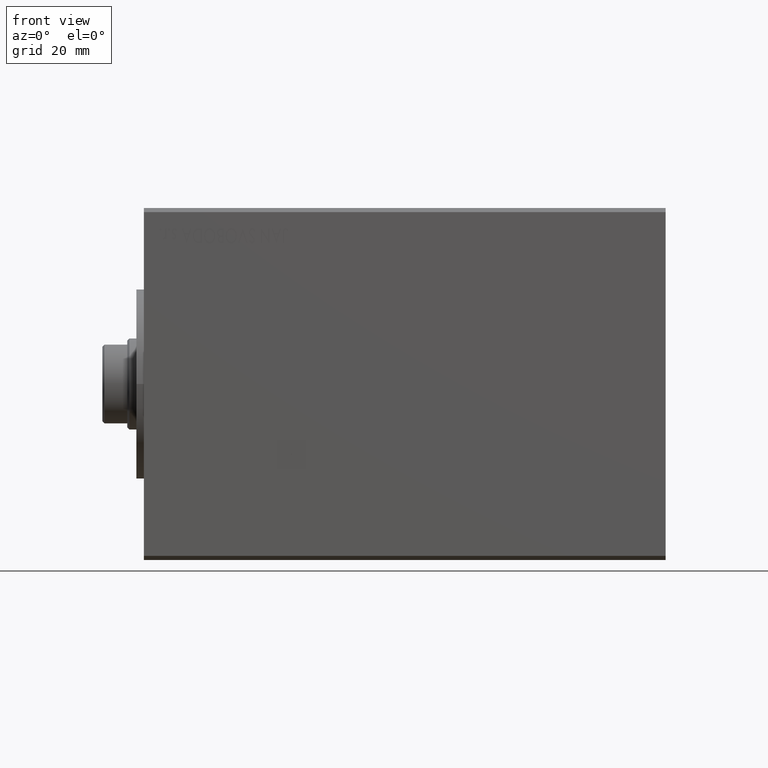
[diagram: clean part render]
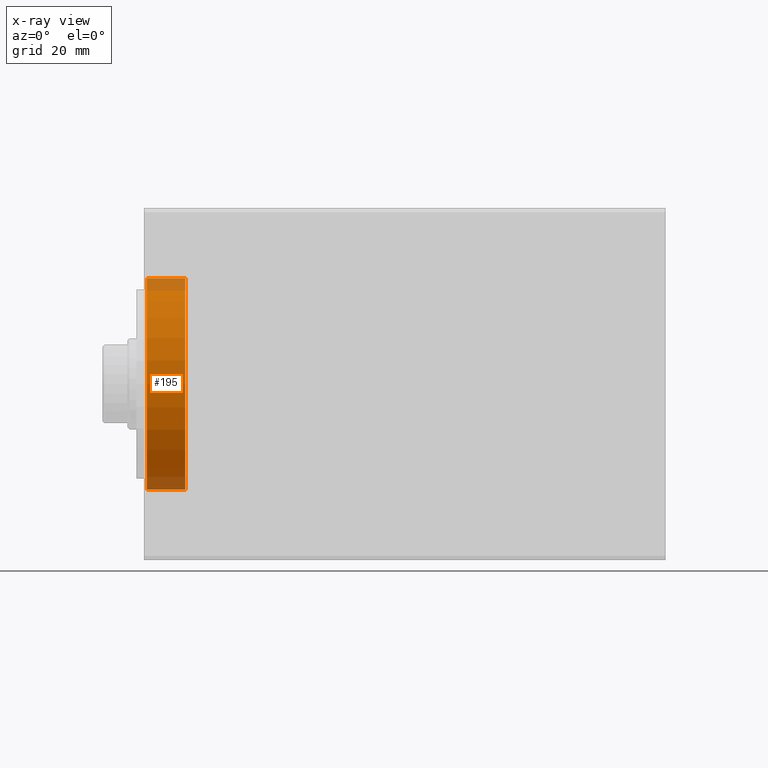
[diagram: x-ray — body ghosted, one internal face saturated and labeled with its STEP entity id]
A machine part, front view, then the same camera in x-ray: the body is ghosted and one INTERNAL B-rep face — a face not visible from any outside direction — is saturated and labeled: STEP entity #195.
In plain terms, the highlighted cylindrical surface (partial cylindrical patch) has radius 25.5 mm, axis along (-1, -0, -0).
Its self-contained STEP definition (entity closure, byte-faithful):
#139 = VECTOR ( 'NONE', #26530, 1000.000000000000000 ) ;
#195 = ADVANCED_FACE ( 'NONE', ( #32063 ), #18845, .F. ) ;
#843 = DIRECTION ( 'NONE',  ( -1.000000000000000000, -0.000000000000000000, -0.000000000000000000 ) ) ;
#4331 = CARTESIAN_POINT ( 'NONE',  ( 0.6999999999999922951, 0.000000000000000000, 25.50000000000000000 ) ) ;
#4491 = CARTESIAN_POINT ( 'NONE',  ( 10.00000000000000000, 0.000000000000000000, 0.000000000000000000 ) ) ;
#5881 = DIRECTION ( 'NONE',  ( -1.000000000000000000, 0.000000000000000000, 0.000000000000000000 ) ) ;
#9327 = EDGE_LOOP ( 'NONE', ( #12363, #21573, #14673, #19824 ) ) ;
#10178 = DIRECTION ( 'NONE',  ( -1.000000000000000000, -0.000000000000000000, -0.000000000000000000 ) ) ;
#10545 = VERTEX_POINT ( 'NONE', #4331 ) ;
#11792 = DIRECTION ( 'NONE',  ( 0.000000000000000000, 0.000000000000000000, 1.000000000000000000 ) ) ;
#11925 = EDGE_CURVE ( 'NONE', #32900, #29172, #38228, .T. ) ;
#12363 = ORIENTED_EDGE ( 'NONE', *, *, #11925, .F. ) ;
#13075 = LINE ( 'NONE', #40871, #139 ) ;
#14644 = EDGE_CURVE ( 'NONE', #29172, #10545, #17003, .T. ) ;
#14673 = ORIENTED_EDGE ( 'NONE', *, *, #19683, .T. ) ;
#17003 = LINE ( 'NONE', #20416, #28141 ) ;
#18845 = CYLINDRICAL_SURFACE ( 'NONE', #26281, 25.50000000000000000 ) ;
#19683 = EDGE_CURVE ( 'NONE', #36815, #10545, #32727, .T. ) ;
#19824 = ORIENTED_EDGE ( 'NONE', *, *, #14644, .F. ) ;
#20416 = CARTESIAN_POINT ( 'NONE',  ( 10.00000000000000000, 0.000000000000000000, 25.50000000000000000 ) ) ;
#20789 = AXIS2_PLACEMENT_3D ( 'NONE', #29414, #40107, #41234 ) ;
#21573 = ORIENTED_EDGE ( 'NONE', *, *, #40935, .T. ) ;
#21577 = CARTESIAN_POINT ( 'NONE',  ( 10.00000000000000000, 0.000000000000000000, 25.50000000000000000 ) ) ;
#26281 = AXIS2_PLACEMENT_3D ( 'NONE', #4491, #843, #11792 ) ;
#26530 = DIRECTION ( 'NONE',  ( -1.000000000000000000, -0.000000000000000000, -0.000000000000000000 ) ) ;
#26850 = CARTESIAN_POINT ( 'NONE',  ( 0.6999999999999922951, 0.000000000000000000, 0.000000000000000000 ) ) ;
#28141 = VECTOR ( 'NONE', #10178, 1000.000000000000000 ) ;
#29172 = VERTEX_POINT ( 'NONE', #21577 ) ;
#29414 = CARTESIAN_POINT ( 'NONE',  ( 10.00000000000000000, 0.000000000000000000, 0.000000000000000000 ) ) ;
#32063 = FACE_OUTER_BOUND ( 'NONE', #9327, .T. ) ;
#32727 = CIRCLE ( 'NONE', #34884, 25.50000000000000000 ) ;
#32900 = VERTEX_POINT ( 'NONE', #39873 ) ;
#33306 = CARTESIAN_POINT ( 'NONE',  ( 0.6999999999999922951, 3.122849337825750222E-15, -25.50000000000000000 ) ) ;
#34884 = AXIS2_PLACEMENT_3D ( 'NONE', #26850, #5881, #40745 ) ;
#36815 = VERTEX_POINT ( 'NONE', #33306 ) ;
#38228 = CIRCLE ( 'NONE', #20789, 25.50000000000000000 ) ;
#39873 = CARTESIAN_POINT ( 'NONE',  ( 10.00000000000000000, 3.122849337825750222E-15, -25.50000000000000000 ) ) ;
#40107 = DIRECTION ( 'NONE',  ( -1.000000000000000000, 0.000000000000000000, 0.000000000000000000 ) ) ;
#40745 = DIRECTION ( 'NONE',  ( 0.000000000000000000, 0.000000000000000000, -1.000000000000000000 ) ) ;
#40871 = CARTESIAN_POINT ( 'NONE',  ( 10.00000000000000000, 3.122849337825750222E-15, -25.50000000000000000 ) ) ;
#40935 = EDGE_CURVE ( 'NONE', #32900, #36815, #13075, .T. ) ;
#41234 = DIRECTION ( 'NONE',  ( 0.000000000000000000, 0.000000000000000000, 1.000000000000000000 ) ) ;